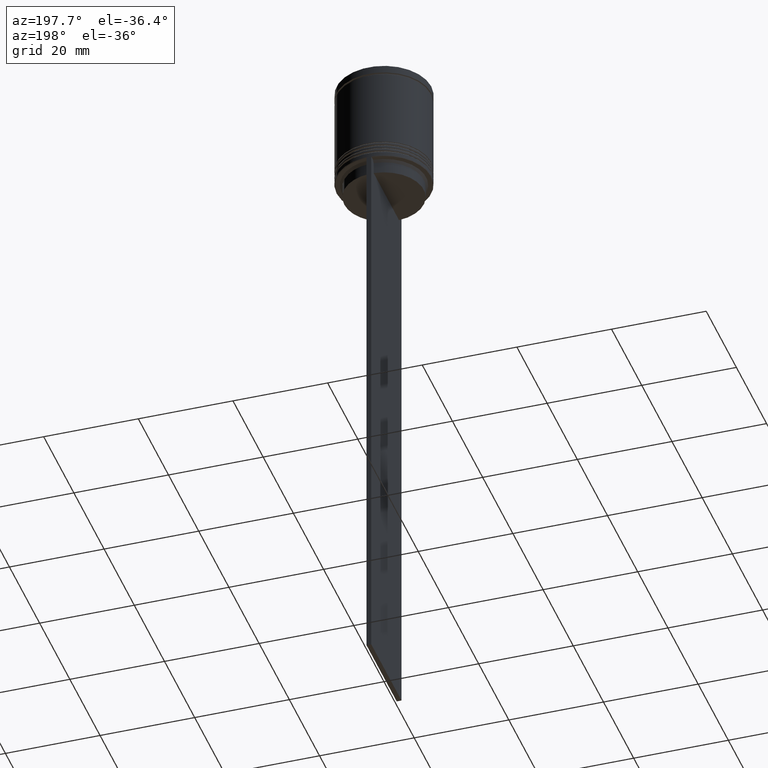
[diagram: clean part render]
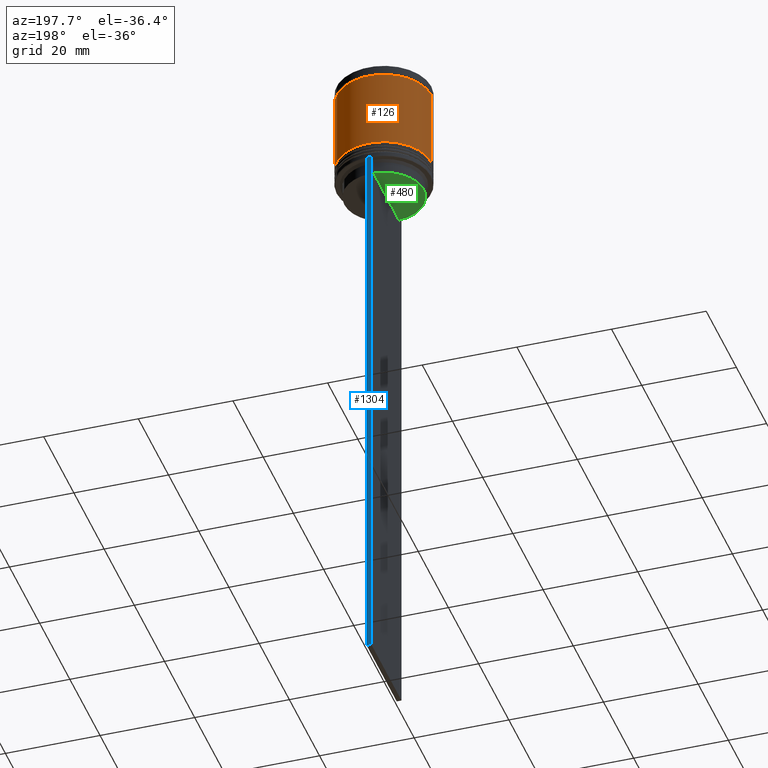
[diagram: same view with three faces highlighted in distinct colors, each labeled with its STEP entity id]
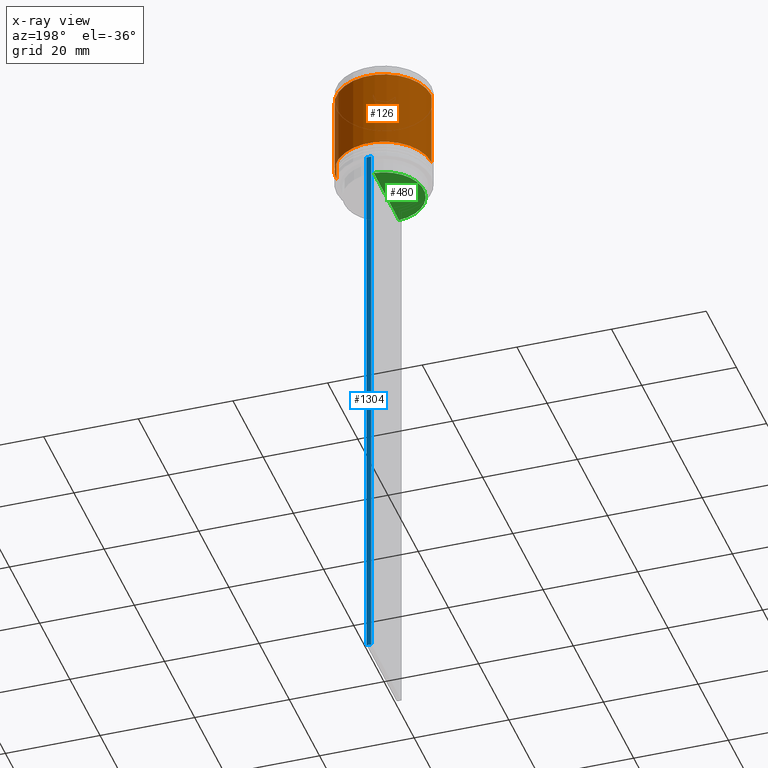
[diagram: x-ray of the same camera — body ghosted, the three highlighted faces saturated]
A machine part, auxiliary view with three faces highlighted in distinct colors.
The next image is the same camera in x-ray (body ghosted, the three faces saturated) — at least one of them is partly hidden behind the body in this view.
Their STEP definitions:

[orange] entity #126 — the highlighted cylindrical surface (partial cylindrical patch) has radius 10 mm, axis along (-0, -0, 1).
#35 = DIRECTION ( 'NONE',  ( 1.000000000000000000, 0.000000000000000000, 0.000000000000000000 ) ) ;
#40 = EDGE_CURVE ( 'NONE', #1680, #1483, #868, .T. ) ;
#126 = ADVANCED_FACE ( 'NONE', ( #1386 ), #459, .T. ) ;
#145 = CARTESIAN_POINT ( 'NONE',  ( -10.00000000000000355, 1.224646799147353651E-15, -19.00000000000000000 ) ) ;
#147 = CARTESIAN_POINT ( 'NONE',  ( 0.000000000000000000, 0.000000000000000000, -2.199999999999995293 ) ) ;
#185 = CARTESIAN_POINT ( 'NONE',  ( -9.999999999999996447, 1.224646799147352862E-15, -2.199999999999995293 ) ) ;
#297 = DIRECTION ( 'NONE',  ( -0.000000000000000000, -0.000000000000000000, 1.000000000000000000 ) ) ;
#309 = DIRECTION ( 'NONE',  ( -0.000000000000000000, -0.000000000000000000, 1.000000000000000000 ) ) ;
#352 = CARTESIAN_POINT ( 'NONE',  ( 10.00000000000000178, 0.000000000000000000, -19.00000000000000000 ) ) ;
#459 = CYLINDRICAL_SURFACE ( 'NONE', #1967, 9.999999999999998224 ) ;
#519 = EDGE_CURVE ( 'NONE', #850, #627, #929, .T. ) ;
#558 = EDGE_LOOP ( 'NONE', ( #1063, #2007, #597, #1251 ) ) ;
#597 = ORIENTED_EDGE ( 'NONE', *, *, #1019, .F. ) ;
#607 = AXIS2_PLACEMENT_3D ( 'NONE', #1616, #1953, #35 ) ;
#611 = AXIS2_PLACEMENT_3D ( 'NONE', #147, #309, #1755 ) ;
#624 = EDGE_CURVE ( 'NONE', #1680, #850, #833, .T. ) ;
#627 = VERTEX_POINT ( 'NONE', #185 ) ;
#767 = CARTESIAN_POINT ( 'NONE',  ( 0.000000000000000000, 0.000000000000000000, 0.000000000000000000 ) ) ;
#833 = CIRCLE ( 'NONE', #607, 10.00000000000000178 ) ;
#850 = VERTEX_POINT ( 'NONE', #145 ) ;
#868 = LINE ( 'NONE', #1491, #1268 ) ;
#929 = LINE ( 'NONE', #1860, #1402 ) ;
#1019 = EDGE_CURVE ( 'NONE', #1483, #627, #1496, .T. ) ;
#1063 = ORIENTED_EDGE ( 'NONE', *, *, #624, .T. ) ;
#1251 = ORIENTED_EDGE ( 'NONE', *, *, #40, .F. ) ;
#1268 = VECTOR ( 'NONE', #1663, 1000.000000000000000 ) ;
#1386 = FACE_OUTER_BOUND ( 'NONE', #558, .T. ) ;
#1402 = VECTOR ( 'NONE', #2020, 1000.000000000000000 ) ;
#1483 = VERTEX_POINT ( 'NONE', #1600 ) ;
#1491 = CARTESIAN_POINT ( 'NONE',  ( 9.999999999999998224, 0.000000000000000000, 0.000000000000000000 ) ) ;
#1496 = CIRCLE ( 'NONE', #611, 9.999999999999996447 ) ;
#1569 = DIRECTION ( 'NONE',  ( 1.000000000000000000, 0.000000000000000000, 0.000000000000000000 ) ) ;
#1600 = CARTESIAN_POINT ( 'NONE',  ( 9.999999999999996447, 0.000000000000000000, -2.199999999999995293 ) ) ;
#1616 = CARTESIAN_POINT ( 'NONE',  ( 0.000000000000000000, 0.000000000000000000, -19.00000000000000000 ) ) ;
#1663 = DIRECTION ( 'NONE',  ( -0.000000000000000000, -0.000000000000000000, 1.000000000000000000 ) ) ;
#1680 = VERTEX_POINT ( 'NONE', #352 ) ;
#1755 = DIRECTION ( 'NONE',  ( 1.000000000000000000, 0.000000000000000000, 0.000000000000000000 ) ) ;
#1860 = CARTESIAN_POINT ( 'NONE',  ( -9.999999999999998224, 1.224646799147353059E-15, 0.000000000000000000 ) ) ;
#1953 = DIRECTION ( 'NONE',  ( -0.000000000000000000, -0.000000000000000000, 1.000000000000000000 ) ) ;
#1967 = AXIS2_PLACEMENT_3D ( 'NONE', #767, #297, #1569 ) ;
#2007 = ORIENTED_EDGE ( 'NONE', *, *, #519, .T. ) ;
#2020 = DIRECTION ( 'NONE',  ( -0.000000000000000000, -0.000000000000000000, 1.000000000000000000 ) ) ;

[blue] entity #1304 — the highlighted planar face has unit normal (0, -1, -0).
#14 = VERTEX_POINT ( 'NONE', #545 ) ;
#28 = VERTEX_POINT ( 'NONE', #1177 ) ;
#100 = VECTOR ( 'NONE', #157, 1000.000000000000000 ) ;
#143 = EDGE_CURVE ( 'NONE', #1523, #719, #2025, .T. ) ;
#148 = CARTESIAN_POINT ( 'NONE',  ( 0.5000000000000000000, 9.999999999999998224, -144.5000000000000000 ) ) ;
#157 = DIRECTION ( 'NONE',  ( 0.000000000000000000, 0.000000000000000000, -1.000000000000000000 ) ) ;
#255 = EDGE_CURVE ( 'NONE', #28, #14, #1966, .T. ) ;
#350 = CARTESIAN_POINT ( 'NONE',  ( -0.5000000000000000000, 9.999999999999998224, -144.5000000000000000 ) ) ;
#446 = CARTESIAN_POINT ( 'NONE',  ( 0.5000000000000000000, 9.999999999999998224, -2.475015605499213844 ) ) ;
#487 = ORIENTED_EDGE ( 'NONE', *, *, #255, .T. ) ;
#542 = EDGE_CURVE ( 'NONE', #14, #1523, #1879, .T. ) ;
#545 = CARTESIAN_POINT ( 'NONE',  ( 0.5000000000000000000, 9.999999999999998224, -22.50000000000000000 ) ) ;
#577 = ORIENTED_EDGE ( 'NONE', *, *, #1476, .F. ) ;
#579 = DIRECTION ( 'NONE',  ( 0.000000000000000000, 0.000000000000000000, -1.000000000000000000 ) ) ;
#600 = DIRECTION ( 'NONE',  ( 0.000000000000000000, -1.000000000000000000, -0.000000000000000000 ) ) ;
#609 = DIRECTION ( 'NONE',  ( -1.000000000000000000, 0.000000000000000000, 0.000000000000000000 ) ) ;
#613 = PLANE ( 'NONE',  #1208 ) ;
#623 = CARTESIAN_POINT ( 'NONE',  ( -0.5000000000000000000, 9.999999999999998224, -2.475015605499213844 ) ) ;
#719 = VERTEX_POINT ( 'NONE', #350 ) ;
#886 = ORIENTED_EDGE ( 'NONE', *, *, #542, .T. ) ;
#1001 = VECTOR ( 'NONE', #609, 1000.000000000000000 ) ;
#1073 = VECTOR ( 'NONE', #1312, 1000.000000000000000 ) ;
#1177 = CARTESIAN_POINT ( 'NONE',  ( -0.5000000000000000000, 9.999999999999994671, -22.50000000000000000 ) ) ;
#1184 = CARTESIAN_POINT ( 'NONE',  ( 0.5000000000000000000, 9.999999999999998224, -22.50000000000000000 ) ) ;
#1208 = AXIS2_PLACEMENT_3D ( 'NONE', #2027, #600, #579 ) ;
#1286 = LINE ( 'NONE', #623, #100 ) ;
#1304 = ADVANCED_FACE ( 'NONE', ( #1874 ), #613, .F. ) ;
#1312 = DIRECTION ( 'NONE',  ( 1.000000000000000000, 0.000000000000000000, 0.000000000000000000 ) ) ;
#1439 = CARTESIAN_POINT ( 'NONE',  ( 0.5000000000000000000, 9.999999999999998224, -144.5000000000000000 ) ) ;
#1476 = EDGE_CURVE ( 'NONE', #28, #719, #1286, .T. ) ;
#1522 = EDGE_LOOP ( 'NONE', ( #577, #487, #886, #1963 ) ) ;
#1523 = VERTEX_POINT ( 'NONE', #1439 ) ;
#1554 = DIRECTION ( 'NONE',  ( 0.000000000000000000, 0.000000000000000000, -1.000000000000000000 ) ) ;
#1806 = VECTOR ( 'NONE', #1554, 1000.000000000000000 ) ;
#1874 = FACE_OUTER_BOUND ( 'NONE', #1522, .T. ) ;
#1879 = LINE ( 'NONE', #446, #1806 ) ;
#1963 = ORIENTED_EDGE ( 'NONE', *, *, #143, .T. ) ;
#1966 = LINE ( 'NONE', #1184, #1073 ) ;
#2025 = LINE ( 'NONE', #148, #1001 ) ;
#2027 = CARTESIAN_POINT ( 'NONE',  ( 0.5000000000000000000, 9.999999999999998224, -2.475015605499213844 ) ) ;

[green] entity #480 — the highlighted planar face has unit normal (0, -0, 1).
#85 = ORIENTED_EDGE ( 'NONE', *, *, #831, .T. ) ;
#102 = CARTESIAN_POINT ( 'NONE',  ( 0.000000000000000000, 8.400000000000000355, -25.50000000000000000 ) ) ;
#245 = CARTESIAN_POINT ( 'NONE',  ( 0.000000000000000000, 0.000000000000000000, -25.50000000000000000 ) ) ;
#257 = PLANE ( 'NONE',  #1565 ) ;
#278 = CARTESIAN_POINT ( 'NONE',  ( -0.5000000000000000000, -8.385105843100610912, -25.50000000000000000 ) ) ;
#417 = ORIENTED_EDGE ( 'NONE', *, *, #1369, .F. ) ;
#480 = ADVANCED_FACE ( 'NONE', ( #1997 ), #257, .F. ) ;
#486 = DIRECTION ( 'NONE',  ( 0.000000000000000000, -1.000000000000000000, 0.000000000000000000 ) ) ;
#641 = VECTOR ( 'NONE', #486, 1000.000000000000000 ) ;
#723 = EDGE_LOOP ( 'NONE', ( #417, #85 ) ) ;
#726 = DIRECTION ( 'NONE',  ( -0.000000000000000000, -0.000000000000000000, 1.000000000000000000 ) ) ;
#731 = DIRECTION ( 'NONE',  ( 0.000000000000000000, -0.000000000000000000, 1.000000000000000000 ) ) ;
#761 = CARTESIAN_POINT ( 'NONE',  ( -0.5000000000000000000, 8.385105843100610912, -25.50000000000000000 ) ) ;
#831 = EDGE_CURVE ( 'NONE', #1264, #1362, #1752, .T. ) ;
#878 = AXIS2_PLACEMENT_3D ( 'NONE', #245, #726, #903 ) ;
#898 = DIRECTION ( 'NONE',  ( 1.000000000000000000, 0.000000000000000000, 0.000000000000000000 ) ) ;
#903 = DIRECTION ( 'NONE',  ( 1.000000000000000000, 0.000000000000000000, 0.000000000000000000 ) ) ;
#1264 = VERTEX_POINT ( 'NONE', #761 ) ;
#1362 = VERTEX_POINT ( 'NONE', #278 ) ;
#1369 = EDGE_CURVE ( 'NONE', #1264, #1362, #1635, .T. ) ;
#1565 = AXIS2_PLACEMENT_3D ( 'NONE', #102, #731, #898 ) ;
#1635 = CIRCLE ( 'NONE', #878, 8.400000000000000355 ) ;
#1752 = LINE ( 'NONE', #2074, #641 ) ;
#1997 = FACE_OUTER_BOUND ( 'NONE', #723, .T. ) ;
#2074 = CARTESIAN_POINT ( 'NONE',  ( -0.5000000000000000000, 8.400000000000000355, -25.50000000000000000 ) ) ;